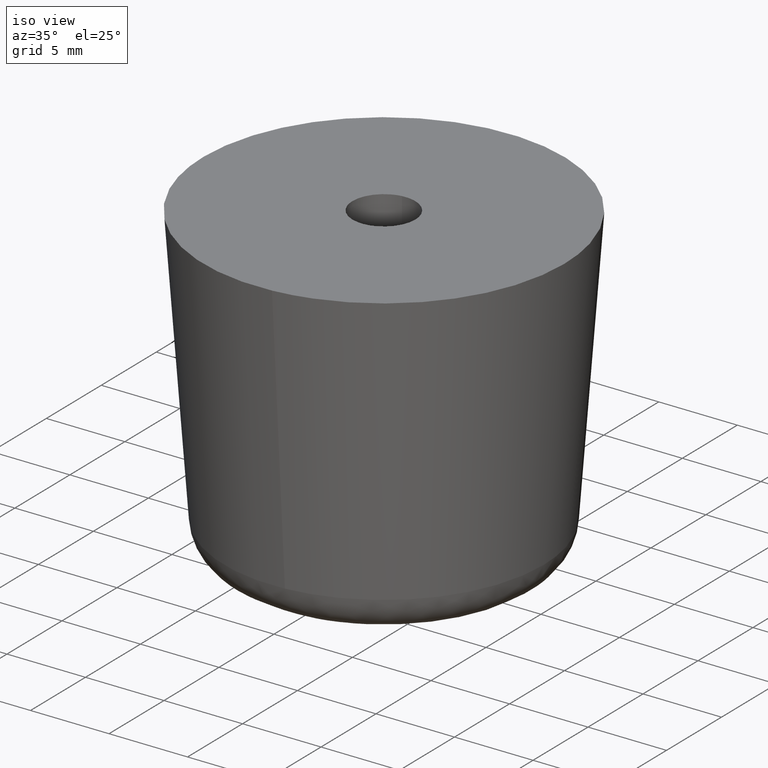
[diagram: clean part render]
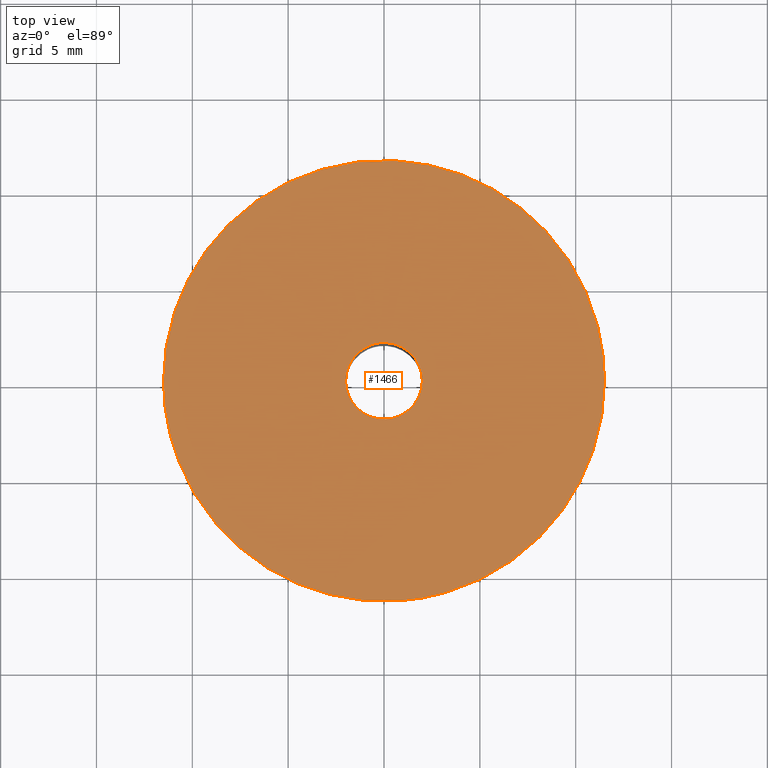
[diagram: tour spotlight — one face highlighted and labeled with its STEP entity id]
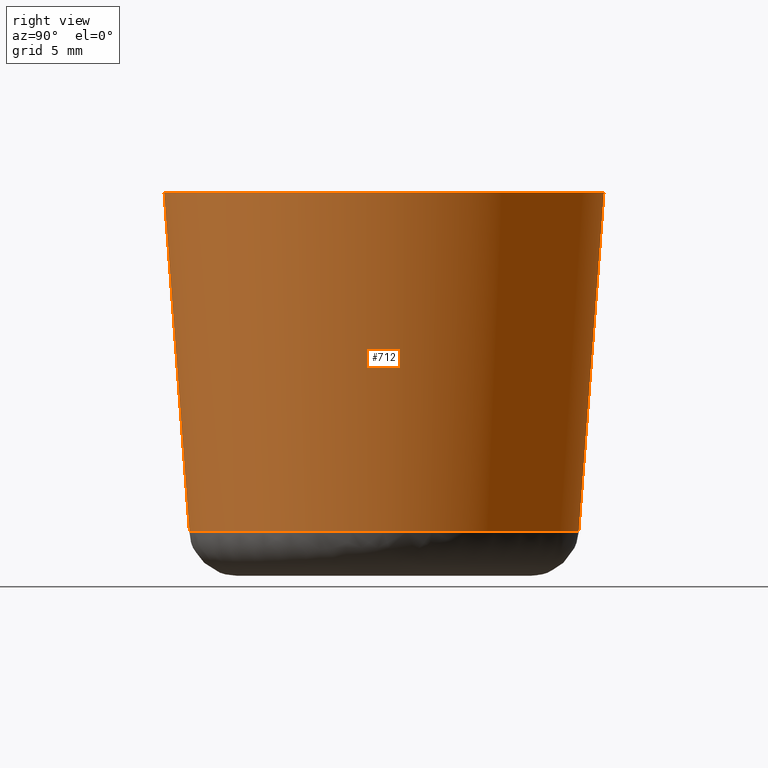
[diagram: tour spotlight — one face highlighted and labeled with its STEP entity id]
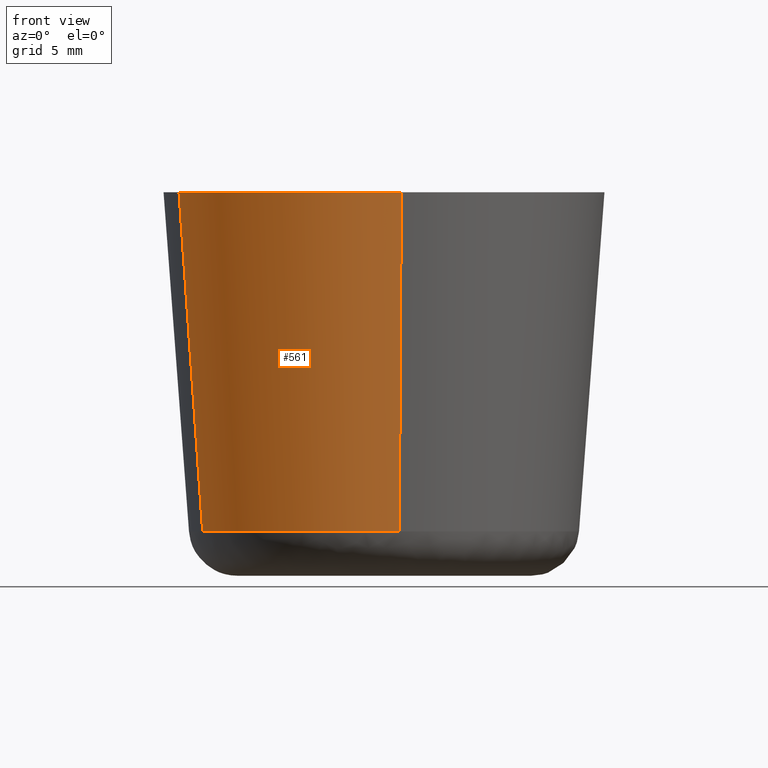
[diagram: tour spotlight — one face highlighted and labeled with its STEP entity id]
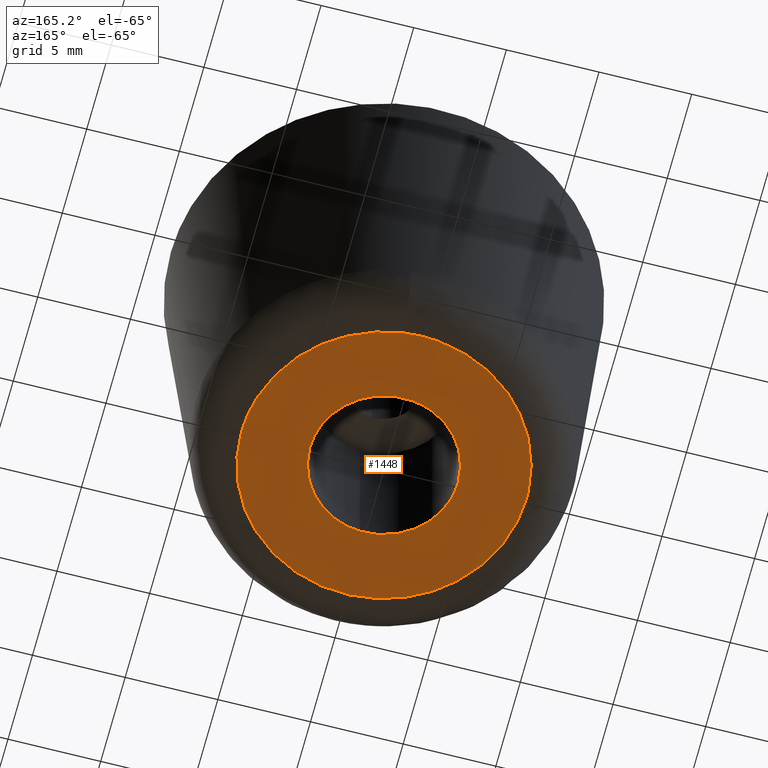
[diagram: tour spotlight — one face highlighted and labeled with its STEP entity id]
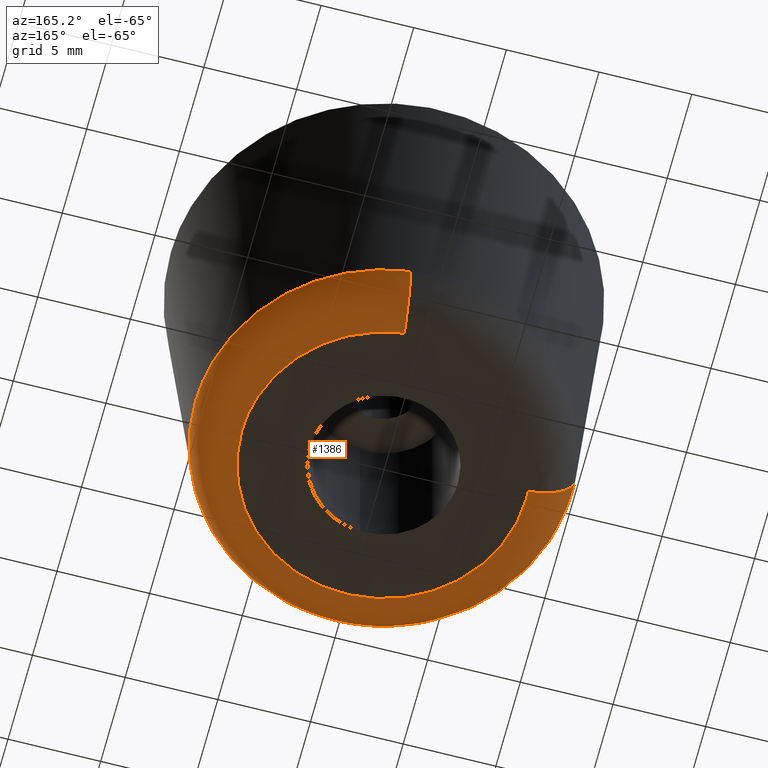
[diagram: tour spotlight — one face highlighted and labeled with its STEP entity id]
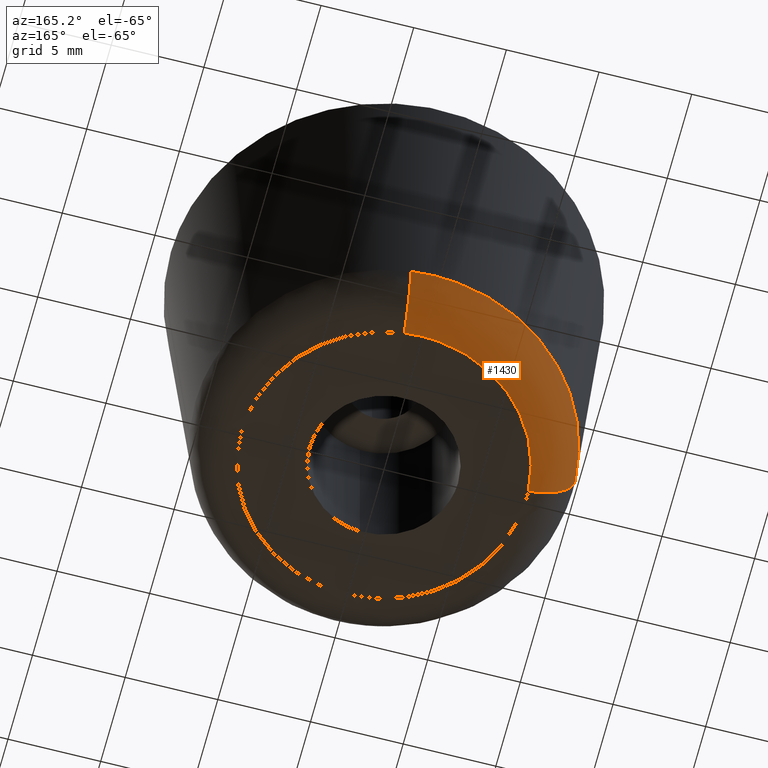
[diagram: tour spotlight — one face highlighted and labeled with its STEP entity id]
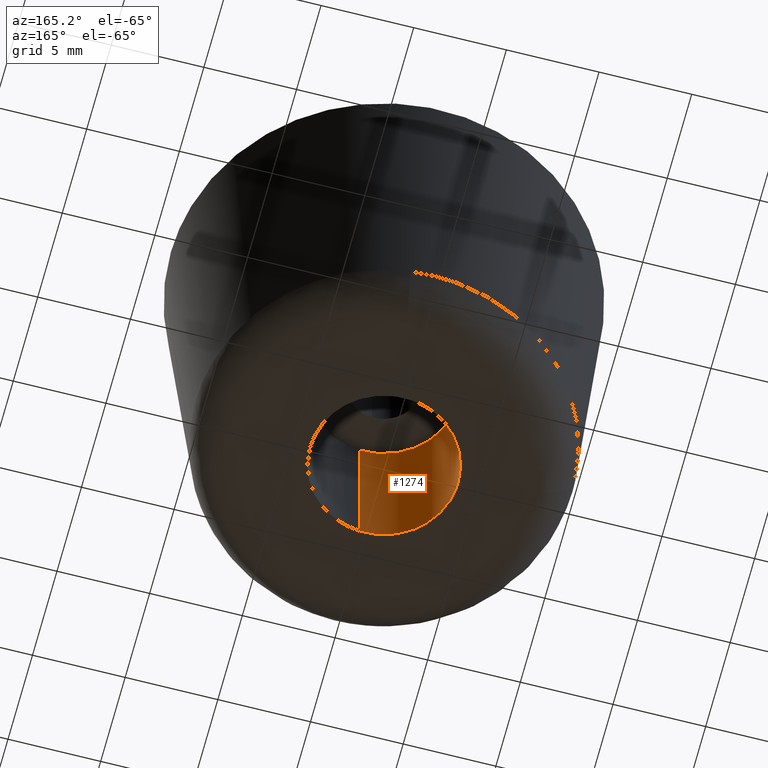
[diagram: tour spotlight — one face highlighted and labeled with its STEP entity id]
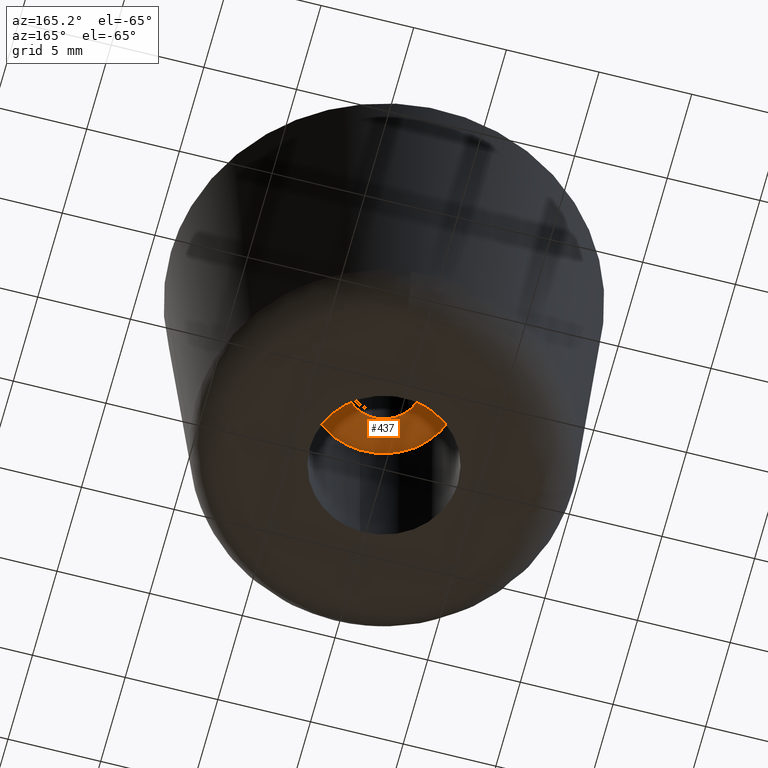
[diagram: tour spotlight — one face highlighted and labeled with its STEP entity id]
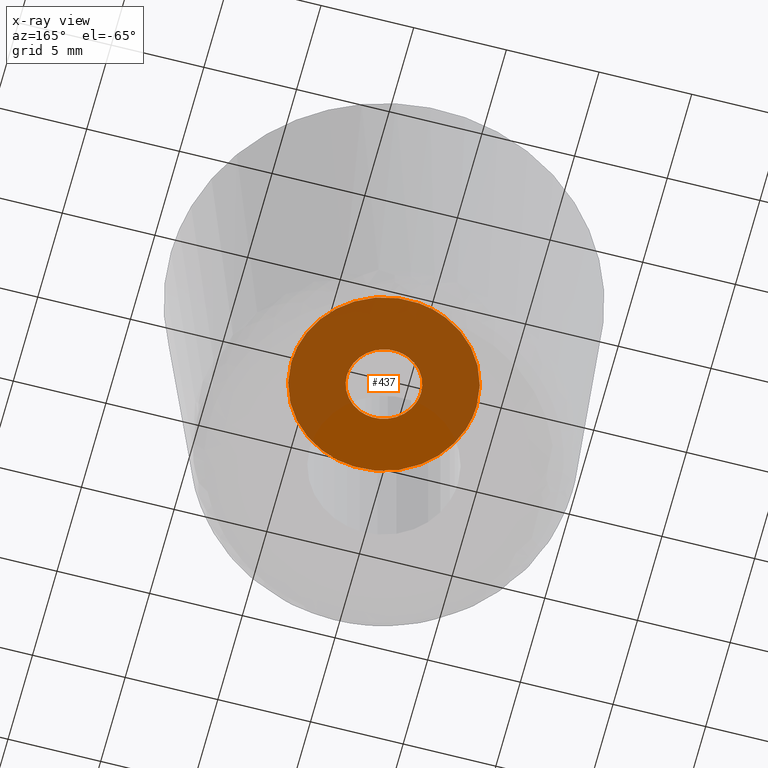
[diagram: x-ray of the same camera — body ghosted, this tour face saturated]
A machine part: a face-by-face anatomy tour. The part has 20 B-rep faces; the first image is the clean iso view, then the 8 largest visible faces are spotlighted one at a time (largest first), each with its STEP entity span.

Face 1 — top view, entity #1466. In plain terms, the highlighted face is a freeform B-spline surface patch.
Definition (entity closure, byte-faithful):
#530=CARTESIAN_POINT('',(0.902272999601038,-11.464549756822350,19.999998662323460));
#531=VERTEX_POINT('',#530);
#537=CARTESIAN_POINT('',(-10.693442220306119,-4.230873545412363,19.999998536992379));
#538=VERTEX_POINT('',#537);
#539=CARTESIAN_POINT('',(0.902272999601038,-11.464549756822350,19.999998662323460));
#540=CARTESIAN_POINT('',(0.451832913641353,-11.499999901567756,19.999998658990851));
#541=CARTESIAN_POINT('',(-1.866479E-009,-11.499999903240919,19.999998655475341));
#542=CARTESIAN_POINT('',(-7.817403479001211,-11.499999932189242,19.999998594651629));
#543=CARTESIAN_POINT('',(-10.693442220306116,-4.230873545412363,19.999998536992379));
#551=(BOUNDED_CURVE()B_SPLINE_CURVE(2,(#539,#540,#541,#542,#543),.UNSPECIFIED.,.F.,.U.)B_SPLINE_CURVE_WITH_KNOTS((3,2,3),(0.736331399221023,0.750000000000000,0.937532605542846),.UNSPECIFIED.)CURVE()GEOMETRIC_REPRESENTATION_ITEM()RATIONAL_B_SPLINE_CURVE((0.969723561918075,0.983986238084677,1.0,0.780291886120329,0.890203252678731))REPRESENTATION_ITEM(''));
#552=EDGE_CURVE('',#531,#538,#551,.T.);
#604=CARTESIAN_POINT('',(-11.500000000000000,0.0,20.0));
#605=VERTEX_POINT('',#604);
#606=CARTESIAN_POINT('',(-10.693442220306116,-4.230873545412363,19.999998536992379));
#607=CARTESIAN_POINT('',(-11.499999948984707,-2.192316319472119,19.999999268496186));
#608=CARTESIAN_POINT('',(-11.500000000000000,0.0,20.0));
#616=(BOUNDED_CURVE()B_SPLINE_CURVE(2,(#606,#607,#608),.UNSPECIFIED.,.F.,.U.)B_SPLINE_CURVE_WITH_KNOTS((3,3),(0.937532605542846,1.0),.UNSPECIFIED.)CURVE()GEOMETRIC_REPRESENTATION_ITEM()RATIONAL_B_SPLINE_CURVE((0.890203252678731,0.926814895066219,1.0))REPRESENTATION_ITEM(''));
#617=EDGE_CURVE('',#538,#605,#616,.T.);
#619=CARTESIAN_POINT('',(11.500000000000000,0.0,20.0));
#620=VERTEX_POINT('',#619);
#621=CARTESIAN_POINT('',(-11.500000000000000,0.0,20.0));
#622=CARTESIAN_POINT('',(-11.500000000000000,11.500000000000000,19.999999999999996));
#623=CARTESIAN_POINT('',(0.0,11.500000000000000,20.0));
#624=CARTESIAN_POINT('',(11.500000000000000,11.500000000000000,19.999999999999996));
#625=CARTESIAN_POINT('',(11.500000000000000,0.0,20.0));
#633=(BOUNDED_CURVE()B_SPLINE_CURVE(2,(#621,#622,#623,#624,#625),.UNSPECIFIED.,.F.,.U.)B_SPLINE_CURVE_WITH_KNOTS((3,2,3),(0.0,0.250000000000000,0.500000000000000),.UNSPECIFIED.)CURVE()GEOMETRIC_REPRESENTATION_ITEM()RATIONAL_B_SPLINE_CURVE((1.0,0.707106781186548,1.0,0.707106781186548,1.0))REPRESENTATION_ITEM(''));
#634=EDGE_CURVE('',#605,#620,#633,.T.);
#636=CARTESIAN_POINT('',(11.500000000000000,0.0,20.0));
#637=CARTESIAN_POINT('',(11.499999996064222,-10.630496736687158,19.999999331161728));
#638=CARTESIAN_POINT('',(0.902272999601038,-11.464549756822350,19.999998662323460));
#646=(BOUNDED_CURVE()B_SPLINE_CURVE(2,(#636,#637,#638),.UNSPECIFIED.,.F.,.U.)B_SPLINE_CURVE_WITH_KNOTS((3,3),(0.500000000000000,0.736331399221023),.UNSPECIFIED.)CURVE()GEOMETRIC_REPRESENTATION_ITEM()RATIONAL_B_SPLINE_CURVE((1.0,0.723120543101871,0.969723561918075))REPRESENTATION_ITEM(''));
#647=EDGE_CURVE('',#620,#531,#646,.T.);
#735=CARTESIAN_POINT('',(-0.236065886624471,1.986019359715669,20.000000000000011));
#736=VERTEX_POINT('',#735);
#737=CARTESIAN_POINT('',(2.0,0.0,20.0));
#738=VERTEX_POINT('',#737);
#739=CARTESIAN_POINT('',(-0.236065886624471,1.986019359715669,20.000000000000014));
#740=CARTESIAN_POINT('',(-0.118446934307620,2.000000000000000,19.999999999999996));
#741=CARTESIAN_POINT('',(0.0,2.0,20.0));
#742=CARTESIAN_POINT('',(2.000000000000000,2.000000000000000,19.999999999999996));
#743=CARTESIAN_POINT('',(2.0,0.0,20.0));
#751=(BOUNDED_CURVE()B_SPLINE_CURVE(2,(#739,#740,#741,#742,#743),.UNSPECIFIED.,.F.,.U.)B_SPLINE_CURVE_WITH_KNOTS((3,2,3),(0.229562693293432,0.250000000000000,0.500000000000000),.UNSPECIFIED.)CURVE()GEOMETRIC_REPRESENTATION_ITEM()RATIONAL_B_SPLINE_CURVE((0.956027184961797,0.976056205819342,1.0,0.707106781186548,1.0))REPRESENTATION_ITEM(''));
#752=EDGE_CURVE('',#736,#738,#751,.T.);
#793=CARTESIAN_POINT('',(0.122097079102479,-1.996269596841730,20.0));
#794=VERTEX_POINT('',#793);
#800=CARTESIAN_POINT('',(2.0,0.0,20.0));
#801=CARTESIAN_POINT('',(2.000000000000000,-1.881412133749522,20.000000000000007));
#802=CARTESIAN_POINT('',(0.122097079102479,-1.996269596841730,19.999999999999996));
#810=(BOUNDED_CURVE()B_SPLINE_CURVE(2,(#800,#801,#802),.UNSPECIFIED.,.F.,.U.)B_SPLINE_CURVE_WITH_KNOTS((3,3),(0.500000000000000,0.739332962236305),.UNSPECIFIED.)CURVE()GEOMETRIC_REPRESENTATION_ITEM()RATIONAL_B_SPLINE_CURVE((1.0,0.719603993289801,0.976072041661064))REPRESENTATION_ITEM(''));
#811=EDGE_CURVE('',#738,#794,#810,.T.);
#834=CARTESIAN_POINT('',(-2.0,0.0,20.0));
#835=VERTEX_POINT('',#834);
#836=CARTESIAN_POINT('',(-2.0,0.0,20.0));
#837=CARTESIAN_POINT('',(-2.000000000000000,1.776351378192379,20.0));
#838=CARTESIAN_POINT('',(-0.236065886624471,1.986019359715669,20.000000000000014));
#846=(BOUNDED_CURVE()B_SPLINE_CURVE(2,(#836,#837,#838),.UNSPECIFIED.,.F.,.U.)B_SPLINE_CURVE_WITH_KNOTS((3,3),(0.0,0.229562693293432),.UNSPECIFIED.)CURVE()GEOMETRIC_REPRESENTATION_ITEM()RATIONAL_B_SPLINE_CURVE((1.0,0.731050575367205,0.956027184961797))REPRESENTATION_ITEM(''));
#847=EDGE_CURVE('',#835,#736,#846,.T.);
#849=CARTESIAN_POINT('',(0.122097079102479,-1.996269596841730,20.0));
#850=CARTESIAN_POINT('',(0.061105526630035,-2.0,20.0));
#851=CARTESIAN_POINT('',(0.0,-2.0,20.0));
#852=CARTESIAN_POINT('',(-2.000000000000000,-2.000000000000000,19.999999999999996));
#853=CARTESIAN_POINT('',(-2.0,0.0,20.0));
#861=(BOUNDED_CURVE()B_SPLINE_CURVE(2,(#849,#850,#851,#852,#853),.UNSPECIFIED.,.F.,.U.)B_SPLINE_CURVE_WITH_KNOTS((3,2,3),(0.739332962236304,0.750000000000000,1.0),.UNSPECIFIED.)CURVE()GEOMETRIC_REPRESENTATION_ITEM()RATIONAL_B_SPLINE_CURVE((0.976072041661062,0.987502787896746,1.0,0.707106781186548,1.0))REPRESENTATION_ITEM(''));
#862=EDGE_CURVE('',#794,#835,#861,.T.);
#1449=CARTESIAN_POINT('',(12.648849955421539,-12.648610729862900,20.0));
#1450=CARTESIAN_POINT('',(-12.648850572329611,-12.648610729862900,20.0));
#1451=CARTESIAN_POINT('',(12.648849955421539,12.648839191486090,20.0));
#1452=CARTESIAN_POINT('',(-12.648850572329611,12.648839191486090,20.0));
#1453=B_SPLINE_SURFACE_WITH_KNOTS('',1,1,((#1449,#1451),(#1450,#1452)),.UNSPECIFIED.,.F.,.F.,.U.,(2,2),(2,2),(0.0,25.297700527751150),(0.0,25.297449921348989),.UNSPECIFIED.);
#1454=ORIENTED_EDGE('',*,*,#617,.F.);
#1455=ORIENTED_EDGE('',*,*,#552,.F.);
#1456=ORIENTED_EDGE('',*,*,#647,.F.);
#1457=ORIENTED_EDGE('',*,*,#634,.F.);
#1458=EDGE_LOOP('',(#1454,#1455,#1456,#1457));
#1459=FACE_OUTER_BOUND('',#1458,.T.);
#1460=ORIENTED_EDGE('',*,*,#811,.T.);
#1461=ORIENTED_EDGE('',*,*,#862,.T.);
#1462=ORIENTED_EDGE('',*,*,#847,.T.);
#1463=ORIENTED_EDGE('',*,*,#752,.T.);
#1464=EDGE_LOOP('',(#1460,#1461,#1462,#1463));
#1465=FACE_BOUND('',#1464,.T.);
#1466=ADVANCED_FACE('',(#1459,#1465),#1453,.F.);

Face 2 — right view, entity #712. In plain terms, the highlighted face is a freeform B-spline surface patch.
Definition (entity closure, byte-faithful):
#511=CARTESIAN_POINT('',(0.798193585195041,-10.142116088553699,2.313023351061828));
#512=VERTEX_POINT('',#511);
#513=CARTESIAN_POINT('',(-9.459956175316147,-3.742841224954973,2.313023037134865));
#514=VERTEX_POINT('',#513);
#530=CARTESIAN_POINT('',(0.902272999601038,-11.464549756822350,19.999998662323460));
#531=VERTEX_POINT('',#530);
#532=CARTESIAN_POINT('',(0.798193585195041,-10.142116088553699,2.313023351061828));
#533=CARTESIAN_POINT('',(0.902272999601038,-11.464549756822350,19.999998662323460));
#534=QUASI_UNIFORM_CURVE('',1,(#532,#533),.UNSPECIFIED.,.F.,.U.);
#535=EDGE_CURVE('',#512,#531,#534,.T.);
#537=CARTESIAN_POINT('',(-10.693442220306119,-4.230873545412363,19.999998536992379));
#538=VERTEX_POINT('',#537);
#554=CARTESIAN_POINT('',(-9.459956175316147,-3.742841224954973,2.313023037134865));
#555=CARTESIAN_POINT('',(-10.693442220306119,-4.230873545412363,19.999998536992379));
#556=QUASI_UNIFORM_CURVE('',1,(#554,#555),.UNSPECIFIED.,.F.,.U.);
#557=EDGE_CURVE('',#514,#538,#556,.T.);
#562=CARTESIAN_POINT('',(0.795599860892206,-10.109054720568411,1.870850614842025));
#563=CARTESIAN_POINT('',(10.904654581460614,-9.313454859676199,1.870850614842025));
#564=CARTESIAN_POINT('',(10.109054720568411,0.795599860892206,1.870850614842025));
#565=CARTESIAN_POINT('',(9.313454859676199,10.904654581460614,1.870850614842025));
#566=CARTESIAN_POINT('',(-0.795599860892206,10.109054720568411,1.870850614842025));
#567=CARTESIAN_POINT('',(-10.904654581460614,9.313454859676199,1.870850614842025));
#568=CARTESIAN_POINT('',(-10.109054720568411,-0.795599860892206,1.870850614842025));
#569=CARTESIAN_POINT('',(-9.989538830468684,-2.314193229725431,1.870850614842025));
#570=CARTESIAN_POINT('',(-9.429117123503739,-3.730645621517359,1.870850614842025));
#571=CARTESIAN_POINT('',(0.904946594369674,-11.498436703365030,20.453228734628951));
#572=CARTESIAN_POINT('',(12.403383297734706,-10.593490108995359,20.453228734628947));
#573=CARTESIAN_POINT('',(11.498436703365030,0.904946594369674,20.453228734628951));
#574=CARTESIAN_POINT('',(10.593490108995359,12.403383297734706,20.453228734628947));
#575=CARTESIAN_POINT('',(-0.904946594369674,11.498436703365030,20.453228734628951));
#576=CARTESIAN_POINT('',(-12.403383297734706,10.593490108995359,20.453228734628947));
#577=CARTESIAN_POINT('',(-11.498436703365030,-0.904946594369674,20.453228734628951));
#578=CARTESIAN_POINT('',(-11.362494626153618,-2.632254459678856,20.453228734628954));
#579=CARTESIAN_POINT('',(-10.725048920016819,-4.243383157717370,20.453228734628951));
#587=(BOUNDED_SURFACE()B_SPLINE_SURFACE(2,1,((#562,#571),(#563,#572),(#564,#573),(#565,#574),(#566,#575),(#567,#576),(#568,#577),(#569,#578),(#570,#579)),.UNSPECIFIED.,.F.,.F.,.U.)B_SPLINE_SURFACE_WITH_KNOTS((3,2,2,2,3),(2,2),(0.0,19.110143910477412,38.220287820954823,57.330431731432228,61.152460513527707),(0.0,18.634567759649759),.UNSPECIFIED.)GEOMETRIC_REPRESENTATION_ITEM()RATIONAL_B_SPLINE_SURFACE(((1.0,1.0),(0.707106781186548,0.707106781186548),(1.0,1.0),(0.707106781186548,0.707106781186548),(1.0,1.0),(0.707106781186548,0.707106781186548),(1.0,1.0),(0.941421356237310,0.941421356237310),(0.906274169979695,0.906274169979695)))REPRESENTATION_ITEM('')SURFACE());
#588=CARTESIAN_POINT('',(-10.173477000000000,0.0,2.313024999999895));
#589=VERTEX_POINT('',#588);
#590=CARTESIAN_POINT('',(-9.459956175316147,-3.742841224954974,2.313023037134865));
#591=CARTESIAN_POINT('',(-10.173476931554358,-1.939432015305154,2.313024018567380));
#592=CARTESIAN_POINT('',(-10.173477000000000,0.0,2.313024999999895));
#600=(BOUNDED_CURVE()B_SPLINE_CURVE(2,(#590,#591,#592),.UNSPECIFIED.,.F.,.U.)B_SPLINE_CURVE_WITH_KNOTS((3,3),(0.937532635059297,1.0),.UNSPECIFIED.)CURVE()GEOMETRIC_REPRESENTATION_ITEM()RATIONAL_B_SPLINE_CURVE((0.890203287277452,0.926814929646891,1.0))REPRESENTATION_ITEM(''));
#601=EDGE_CURVE('',#514,#589,#600,.T.);
#602=ORIENTED_EDGE('',*,*,#601,.F.);
#603=ORIENTED_EDGE('',*,*,#557,.T.);
#604=CARTESIAN_POINT('',(-11.500000000000000,0.0,20.0));
#605=VERTEX_POINT('',#604);
#606=CARTESIAN_POINT('',(-10.693442220306116,-4.230873545412363,19.999998536992379));
#607=CARTESIAN_POINT('',(-11.499999948984707,-2.192316319472119,19.999999268496186));
#608=CARTESIAN_POINT('',(-11.500000000000000,0.0,20.0));
#616=(BOUNDED_CURVE()B_SPLINE_CURVE(2,(#606,#607,#608),.UNSPECIFIED.,.F.,.U.)B_SPLINE_CURVE_WITH_KNOTS((3,3),(0.937532605542846,1.0),.UNSPECIFIED.)CURVE()GEOMETRIC_REPRESENTATION_ITEM()RATIONAL_B_SPLINE_CURVE((0.890203252678731,0.926814895066219,1.0))REPRESENTATION_ITEM(''));
#617=EDGE_CURVE('',#538,#605,#616,.T.);
#618=ORIENTED_EDGE('',*,*,#617,.T.);
#619=CARTESIAN_POINT('',(11.500000000000000,0.0,20.0));
#620=VERTEX_POINT('',#619);
#621=CARTESIAN_POINT('',(-11.500000000000000,0.0,20.0));
#622=CARTESIAN_POINT('',(-11.500000000000000,11.500000000000000,19.999999999999996));
#623=CARTESIAN_POINT('',(0.0,11.500000000000000,20.0));
#624=CARTESIAN_POINT('',(11.500000000000000,11.500000000000000,19.999999999999996));
#625=CARTESIAN_POINT('',(11.500000000000000,0.0,20.0));
#633=(BOUNDED_CURVE()B_SPLINE_CURVE(2,(#621,#622,#623,#624,#625),.UNSPECIFIED.,.F.,.U.)B_SPLINE_CURVE_WITH_KNOTS((3,2,3),(0.0,0.250000000000000,0.500000000000000),.UNSPECIFIED.)CURVE()GEOMETRIC_REPRESENTATION_ITEM()RATIONAL_B_SPLINE_CURVE((1.0,0.707106781186548,1.0,0.707106781186548,1.0))REPRESENTATION_ITEM(''));
#634=EDGE_CURVE('',#605,#620,#633,.T.);
#635=ORIENTED_EDGE('',*,*,#634,.T.);
#636=CARTESIAN_POINT('',(11.500000000000000,0.0,20.0));
#637=CARTESIAN_POINT('',(11.499999996064222,-10.630496736687158,19.999999331161728));
#638=CARTESIAN_POINT('',(0.902272999601038,-11.464549756822350,19.999998662323460));
#646=(BOUNDED_CURVE()B_SPLINE_CURVE(2,(#636,#637,#638),.UNSPECIFIED.,.F.,.U.)B_SPLINE_CURVE_WITH_KNOTS((3,3),(0.500000000000000,0.736331399221023),.UNSPECIFIED.)CURVE()GEOMETRIC_REPRESENTATION_ITEM()RATIONAL_B_SPLINE_CURVE((1.0,0.723120543101871,0.969723561918075))REPRESENTATION_ITEM(''));
#647=EDGE_CURVE('',#620,#531,#646,.T.);
#648=ORIENTED_EDGE('',*,*,#647,.T.);
#649=ORIENTED_EDGE('',*,*,#535,.F.);
#650=CARTESIAN_POINT('',(10.173477000000000,0.0,2.313024999999895));
#651=VERTEX_POINT('',#650);
#652=CARTESIAN_POINT('',(10.173477000000000,0.0,2.313024999999895));
#653=CARTESIAN_POINT('',(10.173476995148388,-9.404272981378053,2.313024175530861));
#654=CARTESIAN_POINT('',(0.798193585195041,-10.142116088553697,2.313023351061828));
#662=(BOUNDED_CURVE()B_SPLINE_CURVE(2,(#652,#653,#654),.UNSPECIFIED.,.F.,.U.)B_SPLINE_CURVE_WITH_KNOTS((3,3),(0.500000000000000,0.736331439415904),.UNSPECIFIED.)CURVE()GEOMETRIC_REPRESENTATION_ITEM()RATIONAL_B_SPLINE_CURVE((1.0,0.723120496010638,0.969723645801815))REPRESENTATION_ITEM(''));
#663=EDGE_CURVE('',#651,#512,#662,.T.);
#664=ORIENTED_EDGE('',*,*,#663,.F.);
#665=CARTESIAN_POINT('',(1.218448693056075,10.100248498573420,2.313024990089781));
#666=VERTEX_POINT('',#665);
#667=CARTESIAN_POINT('',(1.218448693056074,10.100248498573416,2.313024990089781));
#668=CARTESIAN_POINT('',(10.173477000000000,9.019953901967734,2.313024999999895));
#669=CARTESIAN_POINT('',(10.173477000000000,0.0,2.313024999999895));
#677=(BOUNDED_CURVE()B_SPLINE_CURVE(2,(#667,#668,#669),.UNSPECIFIED.,.F.,.U.)B_SPLINE_CURVE_WITH_KNOTS((3,3),(0.270732403713715,0.500000000000000),.UNSPECIFIED.)CURVE()GEOMETRIC_REPRESENTATION_ITEM()RATIONAL_B_SPLINE_CURVE((0.955449597721109,0.731396303016347,1.0))REPRESENTATION_ITEM(''));
#678=EDGE_CURVE('',#666,#651,#677,.T.);
#679=ORIENTED_EDGE('',*,*,#678,.F.);
#680=CARTESIAN_POINT('',(-10.153402098555540,0.638797914530179,2.313024990099993));
#681=VERTEX_POINT('',#680);
#682=CARTESIAN_POINT('',(-10.153402098555542,0.638797914530179,2.313024990099992));
#683=CARTESIAN_POINT('',(-9.553530804483387,10.173476999999998,2.313024999999896));
#684=CARTESIAN_POINT('',(0.0,10.173477000000000,2.313024999999895));
#685=CARTESIAN_POINT('',(0.611424855031880,10.173477000000000,2.313024999999894));
#686=CARTESIAN_POINT('',(1.218448693056074,10.100248498573416,2.313024990089781));
#694=(BOUNDED_CURVE()B_SPLINE_CURVE(2,(#682,#683,#684,#685,#686),.UNSPECIFIED.,.F.,.U.)B_SPLINE_CURVE_WITH_KNOTS((3,2,3),(0.010968089259873,0.250000000000000,0.270732403713715),.UNSPECIFIED.)CURVE()GEOMETRIC_REPRESENTATION_ITEM()RATIONAL_B_SPLINE_CURVE((0.975427680453513,0.719956697056777,1.0,0.975710478170201,0.955449597721109))REPRESENTATION_ITEM(''));
#695=EDGE_CURVE('',#681,#666,#694,.T.);
#696=ORIENTED_EDGE('',*,*,#695,.F.);
#697=CARTESIAN_POINT('',(-10.173477000000000,0.0,2.313024999999895));
#698=CARTESIAN_POINT('',(-10.173476999999997,0.319714394794955,2.313024999999895));
#699=CARTESIAN_POINT('',(-10.153402098555542,0.638797914530179,2.313024990099992));
#707=(BOUNDED_CURVE()B_SPLINE_CURVE(2,(#697,#698,#699),.UNSPECIFIED.,.F.,.U.)B_SPLINE_CURVE_WITH_KNOTS((3,3),(0.0,0.010968089259873),.UNSPECIFIED.)CURVE()GEOMETRIC_REPRESENTATION_ITEM()RATIONAL_B_SPLINE_CURVE((1.0,0.987150084129770,0.975427680453513))REPRESENTATION_ITEM(''));
#708=EDGE_CURVE('',#589,#681,#707,.T.);
#709=ORIENTED_EDGE('',*,*,#708,.F.);
#710=EDGE_LOOP('',(#602,#603,#618,#635,#648,#649,#664,#679,#696,#709));
#711=FACE_OUTER_BOUND('',#710,.T.);
#712=ADVANCED_FACE('',(#711),#587,.T.);

Face 3 — front view, entity #561. In plain terms, the highlighted face is a freeform B-spline surface patch.
Definition (entity closure, byte-faithful):
#497=CARTESIAN_POINT('',(-9.429117123503739,-3.730645621517359,1.870850614842025));
#498=CARTESIAN_POINT('',(-6.672930594443229,-10.696840814874953,1.870850614842026));
#499=CARTESIAN_POINT('',(0.795599860892206,-10.109054720568411,1.870850614842025));
#500=CARTESIAN_POINT('',(-10.725048920016819,-4.243383157717370,20.453228734628951));
#501=CARTESIAN_POINT('',(-7.590053886051103,-12.167007740650106,20.453228734628954));
#502=CARTESIAN_POINT('',(0.904946594369674,-11.498436703365030,20.453228734628951));
#510=(BOUNDED_SURFACE()B_SPLINE_SURFACE(2,1,((#497,#500),(#498,#501),(#499,#502)),.UNSPECIFIED.,.F.,.F.,.U.)B_SPLINE_SURFACE_WITH_KNOTS((3,3),(2,2),(0.0,15.183909249679511),(0.0,18.634567759649759),.UNSPECIFIED.)GEOMETRIC_REPRESENTATION_ITEM()RATIONAL_B_SPLINE_SURFACE(((0.906274169979695,0.906274169979695),(0.765685424949238,0.765685424949238),(1.0,1.0)))REPRESENTATION_ITEM('')SURFACE());
#511=CARTESIAN_POINT('',(0.798193585195041,-10.142116088553699,2.313023351061828));
#512=VERTEX_POINT('',#511);
#513=CARTESIAN_POINT('',(-9.459956175316147,-3.742841224954973,2.313023037134865));
#514=VERTEX_POINT('',#513);
#515=CARTESIAN_POINT('',(0.798193585195041,-10.142116088553697,2.313023351061828));
#516=CARTESIAN_POINT('',(0.399712869647991,-10.173476878545779,2.313023342714395));
#517=CARTESIAN_POINT('',(-1.693291E-009,-10.173476880484889,2.313023333908840));
#518=CARTESIAN_POINT('',(-6.915668718298093,-10.173476914034600,2.313023181558714));
#519=CARTESIAN_POINT('',(-9.459956175316147,-3.742841224954974,2.313023037134865));
#527=(BOUNDED_CURVE()B_SPLINE_CURVE(2,(#515,#516,#517,#518,#519),.UNSPECIFIED.,.F.,.U.)B_SPLINE_CURVE_WITH_KNOTS((3,2,3),(0.736331439415904,0.750000000000000,0.937532635059297),.UNSPECIFIED.)CURVE()GEOMETRIC_REPRESENTATION_ITEM()RATIONAL_B_SPLINE_CURVE((0.969723645801815,0.983986285175910,1.0,0.780291851539656,0.890203287277452))REPRESENTATION_ITEM(''));
#528=EDGE_CURVE('',#512,#514,#527,.T.);
#529=ORIENTED_EDGE('',*,*,#528,.F.);
#530=CARTESIAN_POINT('',(0.902272999601038,-11.464549756822350,19.999998662323460));
#531=VERTEX_POINT('',#530);
#532=CARTESIAN_POINT('',(0.798193585195041,-10.142116088553699,2.313023351061828));
#533=CARTESIAN_POINT('',(0.902272999601038,-11.464549756822350,19.999998662323460));
#534=QUASI_UNIFORM_CURVE('',1,(#532,#533),.UNSPECIFIED.,.F.,.U.);
#535=EDGE_CURVE('',#512,#531,#534,.T.);
#536=ORIENTED_EDGE('',*,*,#535,.T.);
#537=CARTESIAN_POINT('',(-10.693442220306119,-4.230873545412363,19.999998536992379));
#538=VERTEX_POINT('',#537);
#539=CARTESIAN_POINT('',(0.902272999601038,-11.464549756822350,19.999998662323460));
#540=CARTESIAN_POINT('',(0.451832913641353,-11.499999901567756,19.999998658990851));
#541=CARTESIAN_POINT('',(-1.866479E-009,-11.499999903240919,19.999998655475341));
#542=CARTESIAN_POINT('',(-7.817403479001211,-11.499999932189242,19.999998594651629));
#543=CARTESIAN_POINT('',(-10.693442220306116,-4.230873545412363,19.999998536992379));
#551=(BOUNDED_CURVE()B_SPLINE_CURVE(2,(#539,#540,#541,#542,#543),.UNSPECIFIED.,.F.,.U.)B_SPLINE_CURVE_WITH_KNOTS((3,2,3),(0.736331399221023,0.750000000000000,0.937532605542846),.UNSPECIFIED.)CURVE()GEOMETRIC_REPRESENTATION_ITEM()RATIONAL_B_SPLINE_CURVE((0.969723561918075,0.983986238084677,1.0,0.780291886120329,0.890203252678731))REPRESENTATION_ITEM(''));
#552=EDGE_CURVE('',#531,#538,#551,.T.);
#553=ORIENTED_EDGE('',*,*,#552,.T.);
#554=CARTESIAN_POINT('',(-9.459956175316147,-3.742841224954973,2.313023037134865));
#555=CARTESIAN_POINT('',(-10.693442220306119,-4.230873545412363,19.999998536992379));
#556=QUASI_UNIFORM_CURVE('',1,(#554,#555),.UNSPECIFIED.,.F.,.U.);
#557=EDGE_CURVE('',#514,#538,#556,.T.);
#558=ORIENTED_EDGE('',*,*,#557,.F.);
#559=EDGE_LOOP('',(#529,#536,#553,#558));
#560=FACE_OUTER_BOUND('',#559,.T.);
#561=ADVANCED_FACE('',(#560),#510,.T.);

Face 4 — auxiliary view, entity #1448. In plain terms, the highlighted face is a freeform B-spline surface patch.
Definition (entity closure, byte-faithful):
#1111=CARTESIAN_POINT('',(-0.472136938642817,3.972038105452789,1.277743E-016));
#1112=VERTEX_POINT('',#1111);
#1113=CARTESIAN_POINT('',(4.0,0.0,0.0));
#1114=VERTEX_POINT('',#1113);
#1115=CARTESIAN_POINT('',(-0.472136938642817,3.972038105452789,1.277743E-016));
#1116=CARTESIAN_POINT('',(-0.236896478623590,4.0,0.0));
#1117=CARTESIAN_POINT('',(0.0,4.0,0.0));
#1118=CARTESIAN_POINT('',(4.000000000000000,4.000000000000000,0.0));
#1119=CARTESIAN_POINT('',(4.0,0.0,0.0));
#1127=(BOUNDED_CURVE()B_SPLINE_CURVE(2,(#1115,#1116,#1117,#1118,#1119),.UNSPECIFIED.,.F.,.U.)B_SPLINE_CURVE_WITH_KNOTS((3,2,3),(0.229562473514301,0.250000000000000,0.500000000000000),.UNSPECIFIED.)CURVE()GEOMETRIC_REPRESENTATION_ITEM()RATIONAL_B_SPLINE_CURVE((0.956026754185253,0.976055948332074,1.0,0.707106781186548,1.0))REPRESENTATION_ITEM(''));
#1128=EDGE_CURVE('',#1112,#1114,#1127,.T.);
#1130=CARTESIAN_POINT('',(0.244194158158791,-3.992539193686283,1.110223E-016));
#1131=VERTEX_POINT('',#1130);
#1132=CARTESIAN_POINT('',(4.0,0.0,0.0));
#1133=CARTESIAN_POINT('',(4.0,-3.762824267586224,0.0));
#1134=CARTESIAN_POINT('',(0.244194158158791,-3.992539193686283,1.110223E-016));
#1142=(BOUNDED_CURVE()B_SPLINE_CURVE(2,(#1132,#1133,#1134),.UNSPECIFIED.,.F.,.U.)B_SPLINE_CURVE_WITH_KNOTS((3,3),(0.500000000000000,0.739332962240295),.UNSPECIFIED.)CURVE()GEOMETRIC_REPRESENTATION_ITEM()RATIONAL_B_SPLINE_CURVE((1.0,0.719603993285126,0.976072041669616))REPRESENTATION_ITEM(''));
#1143=EDGE_CURVE('',#1114,#1131,#1142,.T.);
#1210=CARTESIAN_POINT('',(-4.0,0.0,0.0));
#1211=VERTEX_POINT('',#1210);
#1212=CARTESIAN_POINT('',(-4.0,0.0,0.0));
#1213=CARTESIAN_POINT('',(-4.000000000000000,3.552698103777036,0.0));
#1214=CARTESIAN_POINT('',(-0.472136938642817,3.972038105452789,1.277743E-016));
#1222=(BOUNDED_CURVE()B_SPLINE_CURVE(2,(#1212,#1213,#1214),.UNSPECIFIED.,.F.,.U.)B_SPLINE_CURVE_WITH_KNOTS((3,3),(0.0,0.229562473514301),.UNSPECIFIED.)CURVE()GEOMETRIC_REPRESENTATION_ITEM()RATIONAL_B_SPLINE_CURVE((1.0,0.731050832854474,0.956026754185253))REPRESENTATION_ITEM(''));
#1223=EDGE_CURVE('',#1211,#1112,#1222,.T.);
#1257=CARTESIAN_POINT('',(0.244194158158791,-3.992539193686283,1.110223E-016));
#1258=CARTESIAN_POINT('',(0.122211053213773,-4.000000000000000,0.0));
#1259=CARTESIAN_POINT('',(0.0,-4.0,0.0));
#1260=CARTESIAN_POINT('',(-4.000000000000000,-4.000000000000000,0.0));
#1261=CARTESIAN_POINT('',(-4.0,0.0,0.0));
#1269=(BOUNDED_CURVE()B_SPLINE_CURVE(2,(#1257,#1258,#1259,#1260,#1261),.UNSPECIFIED.,.F.,.U.)B_SPLINE_CURVE_WITH_KNOTS((3,2,3),(0.739332962240295,0.750000000000000,1.0),.UNSPECIFIED.)CURVE()GEOMETRIC_REPRESENTATION_ITEM()RATIONAL_B_SPLINE_CURVE((0.976072041669615,0.987502787901421,1.0,0.707106781186548,1.0))REPRESENTATION_ITEM(''));
#1270=EDGE_CURVE('',#1131,#1211,#1269,.T.);
#1304=CARTESIAN_POINT('',(0.919869330717334,7.625194954073032,-9.869419E-014));
#1305=VERTEX_POINT('',#1304);
#1306=CARTESIAN_POINT('',(7.680478999999999,0.0,0.0));
#1307=VERTEX_POINT('',#1306);
#1308=CARTESIAN_POINT('',(0.919869330717334,7.625194954073032,-9.869419E-014));
#1309=CARTESIAN_POINT('',(7.680479000000000,6.809625315353274,-8.819687E-014));
#1310=CARTESIAN_POINT('',(7.680478999999999,0.0,0.0));
#1318=(BOUNDED_CURVE()B_SPLINE_CURVE(2,(#1308,#1309,#1310),.UNSPECIFIED.,.F.,.U.)B_SPLINE_CURVE_WITH_KNOTS((3,3),(0.270732403715329,0.500000000000000),.UNSPECIFIED.)CURVE()GEOMETRIC_REPRESENTATION_ITEM()RATIONAL_B_SPLINE_CURVE((0.955449597717954,0.731396303018238,1.0))REPRESENTATION_ITEM(''));
#1319=EDGE_CURVE('',#1305,#1307,#1318,.T.);
#1339=CARTESIAN_POINT('',(-7.665323329333303,0.482261266689054,-9.906979E-014));
#1340=VERTEX_POINT('',#1339);
#1354=CARTESIAN_POINT('',(-7.680478999999999,0.0,-9.947598E-014));
#1355=VERTEX_POINT('',#1354);
#1356=CARTESIAN_POINT('',(-7.680478999999999,0.0,-9.947598E-014));
#1357=CARTESIAN_POINT('',(-7.680478999999999,0.241368776426751,-9.947598E-014));
#1358=CARTESIAN_POINT('',(-7.665323329333304,0.482261266689054,-9.906979E-014));
#1366=(BOUNDED_CURVE()B_SPLINE_CURVE(2,(#1356,#1357,#1358),.UNSPECIFIED.,.F.,.U.)B_SPLINE_CURVE_WITH_KNOTS((3,3),(0.0,0.010968089261087),.UNSPECIFIED.)CURVE()GEOMETRIC_REPRESENTATION_ITEM()RATIONAL_B_SPLINE_CURVE((1.0,0.987150084128348,0.975427680450918))REPRESENTATION_ITEM(''));
#1367=EDGE_CURVE('',#1355,#1340,#1366,.T.);
#1369=CARTESIAN_POINT('',(7.680478999999999,0.0,0.0));
#1370=CARTESIAN_POINT('',(7.680478999999999,-7.680478999999999,-9.947598E-014));
#1371=CARTESIAN_POINT('',(0.0,-7.680478999999999,-9.947598E-014));
#1372=CARTESIAN_POINT('',(-7.680478999999999,-7.680478999999999,-9.947598E-014));
#1373=CARTESIAN_POINT('',(-7.680478999999999,0.0,-9.947598E-014));
#1381=(BOUNDED_CURVE()B_SPLINE_CURVE(2,(#1369,#1370,#1371,#1372,#1373),.UNSPECIFIED.,.F.,.U.)B_SPLINE_CURVE_WITH_KNOTS((3,2,3),(0.500000000000000,0.750000000000000,1.0),.UNSPECIFIED.)CURVE()GEOMETRIC_REPRESENTATION_ITEM()RATIONAL_B_SPLINE_CURVE((1.0,0.707106781186548,1.0,0.707106781186548,1.0))REPRESENTATION_ITEM(''));
#1382=EDGE_CURVE('',#1307,#1355,#1381,.T.);
#1410=CARTESIAN_POINT('',(-7.665323329333304,0.482261266689054,-9.906979E-014));
#1411=CARTESIAN_POINT('',(-7.212449855557756,7.680479000000000,-9.947598E-014));
#1412=CARTESIAN_POINT('',(0.0,7.680478999999999,-9.947598E-014));
#1413=CARTESIAN_POINT('',(0.461595947926668,7.680478999999998,-9.947598E-014));
#1414=CARTESIAN_POINT('',(0.919869330717334,7.625194954073032,-9.869419E-014));
#1422=(BOUNDED_CURVE()B_SPLINE_CURVE(2,(#1410,#1411,#1412,#1413,#1414),.UNSPECIFIED.,.F.,.U.)B_SPLINE_CURVE_WITH_KNOTS((3,2,3),(0.010968089261087,0.250000000000000,0.270732403715329),.UNSPECIFIED.)CURVE()GEOMETRIC_REPRESENTATION_ITEM()RATIONAL_B_SPLINE_CURVE((0.975427680450918,0.719956697058200,1.0,0.975710478168309,0.955449597717954))REPRESENTATION_ITEM(''));
#1423=EDGE_CURVE('',#1340,#1305,#1422,.T.);
#1431=CARTESIAN_POINT('',(-8.447758966525166,-8.447733467295077,-4.973799E-014));
#1432=CARTESIAN_POINT('',(8.447759241200499,-8.447733467295077,-4.973799E-014));
#1433=CARTESIAN_POINT('',(-8.447758966525166,8.447223247626610,-4.973799E-014));
#1434=CARTESIAN_POINT('',(8.447759241200499,8.447223247626610,-4.973799E-014));
#1435=B_SPLINE_SURFACE_WITH_KNOTS('',1,1,((#1431,#1433),(#1432,#1434)),.UNSPECIFIED.,.F.,.F.,.U.,(2,2),(2,2),(0.0,16.895518207725669),(0.0,16.894956714921690),.UNSPECIFIED.);
#1436=ORIENTED_EDGE('',*,*,#1367,.T.);
#1437=ORIENTED_EDGE('',*,*,#1423,.T.);
#1438=ORIENTED_EDGE('',*,*,#1319,.T.);
#1439=ORIENTED_EDGE('',*,*,#1382,.T.);
#1440=EDGE_LOOP('',(#1436,#1437,#1438,#1439));
#1441=FACE_OUTER_BOUND('',#1440,.T.);
#1442=ORIENTED_EDGE('',*,*,#1143,.F.);
#1443=ORIENTED_EDGE('',*,*,#1128,.F.);
#1444=ORIENTED_EDGE('',*,*,#1223,.F.);
#1445=ORIENTED_EDGE('',*,*,#1270,.F.);
#1446=EDGE_LOOP('',(#1442,#1443,#1444,#1445));
#1447=FACE_BOUND('',#1446,.T.);
#1448=ADVANCED_FACE('',(#1441,#1447),#1435,.F.);

Face 5 — auxiliary view, entity #1386. In plain terms, the highlighted face is a freeform B-spline surface patch.
Definition (entity closure, byte-faithful):
#511=CARTESIAN_POINT('',(0.798193585195041,-10.142116088553699,2.313023351061828));
#512=VERTEX_POINT('',#511);
#513=CARTESIAN_POINT('',(-9.459956175316147,-3.742841224954973,2.313023037134865));
#514=VERTEX_POINT('',#513);
#515=CARTESIAN_POINT('',(0.798193585195041,-10.142116088553697,2.313023351061828));
#516=CARTESIAN_POINT('',(0.399712869647991,-10.173476878545779,2.313023342714395));
#517=CARTESIAN_POINT('',(-1.693291E-009,-10.173476880484889,2.313023333908840));
#518=CARTESIAN_POINT('',(-6.915668718298093,-10.173476914034600,2.313023181558714));
#519=CARTESIAN_POINT('',(-9.459956175316147,-3.742841224954974,2.313023037134865));
#527=(BOUNDED_CURVE()B_SPLINE_CURVE(2,(#515,#516,#517,#518,#519),.UNSPECIFIED.,.F.,.U.)B_SPLINE_CURVE_WITH_KNOTS((3,2,3),(0.736331439415904,0.750000000000000,0.937532635059297),.UNSPECIFIED.)CURVE()GEOMETRIC_REPRESENTATION_ITEM()RATIONAL_B_SPLINE_CURVE((0.969723645801815,0.983986285175910,1.0,0.780291851539656,0.890203287277452))REPRESENTATION_ITEM(''));
#528=EDGE_CURVE('',#512,#514,#527,.T.);
#588=CARTESIAN_POINT('',(-10.173477000000000,0.0,2.313024999999895));
#589=VERTEX_POINT('',#588);
#590=CARTESIAN_POINT('',(-9.459956175316147,-3.742841224954974,2.313023037134865));
#591=CARTESIAN_POINT('',(-10.173476931554358,-1.939432015305154,2.313024018567380));
#592=CARTESIAN_POINT('',(-10.173477000000000,0.0,2.313024999999895));
#600=(BOUNDED_CURVE()B_SPLINE_CURVE(2,(#590,#591,#592),.UNSPECIFIED.,.F.,.U.)B_SPLINE_CURVE_WITH_KNOTS((3,3),(0.937532635059297,1.0),.UNSPECIFIED.)CURVE()GEOMETRIC_REPRESENTATION_ITEM()RATIONAL_B_SPLINE_CURVE((0.890203287277452,0.926814929646891,1.0))REPRESENTATION_ITEM(''));
#601=EDGE_CURVE('',#514,#589,#600,.T.);
#650=CARTESIAN_POINT('',(10.173477000000000,0.0,2.313024999999895));
#651=VERTEX_POINT('',#650);
#652=CARTESIAN_POINT('',(10.173477000000000,0.0,2.313024999999895));
#653=CARTESIAN_POINT('',(10.173476995148388,-9.404272981378053,2.313024175530861));
#654=CARTESIAN_POINT('',(0.798193585195041,-10.142116088553697,2.313023351061828));
#662=(BOUNDED_CURVE()B_SPLINE_CURVE(2,(#652,#653,#654),.UNSPECIFIED.,.F.,.U.)B_SPLINE_CURVE_WITH_KNOTS((3,3),(0.500000000000000,0.736331439415904),.UNSPECIFIED.)CURVE()GEOMETRIC_REPRESENTATION_ITEM()RATIONAL_B_SPLINE_CURVE((1.0,0.723120496010638,0.969723645801815))REPRESENTATION_ITEM(''));
#663=EDGE_CURVE('',#651,#512,#662,.T.);
#665=CARTESIAN_POINT('',(1.218448693056075,10.100248498573420,2.313024990089781));
#666=VERTEX_POINT('',#665);
#667=CARTESIAN_POINT('',(1.218448693056074,10.100248498573416,2.313024990089781));
#668=CARTESIAN_POINT('',(10.173477000000000,9.019953901967734,2.313024999999895));
#669=CARTESIAN_POINT('',(10.173477000000000,0.0,2.313024999999895));
#677=(BOUNDED_CURVE()B_SPLINE_CURVE(2,(#667,#668,#669),.UNSPECIFIED.,.F.,.U.)B_SPLINE_CURVE_WITH_KNOTS((3,3),(0.270732403713715,0.500000000000000),.UNSPECIFIED.)CURVE()GEOMETRIC_REPRESENTATION_ITEM()RATIONAL_B_SPLINE_CURVE((0.955449597721109,0.731396303016347,1.0))REPRESENTATION_ITEM(''));
#678=EDGE_CURVE('',#666,#651,#677,.T.);
#680=CARTESIAN_POINT('',(-10.153402098555540,0.638797914530179,2.313024990099993));
#681=VERTEX_POINT('',#680);
#697=CARTESIAN_POINT('',(-10.173477000000000,0.0,2.313024999999895));
#698=CARTESIAN_POINT('',(-10.173476999999997,0.319714394794955,2.313024999999895));
#699=CARTESIAN_POINT('',(-10.153402098555542,0.638797914530179,2.313024990099992));
#707=(BOUNDED_CURVE()B_SPLINE_CURVE(2,(#697,#698,#699),.UNSPECIFIED.,.F.,.U.)B_SPLINE_CURVE_WITH_KNOTS((3,3),(0.0,0.010968089259873),.UNSPECIFIED.)CURVE()GEOMETRIC_REPRESENTATION_ITEM()RATIONAL_B_SPLINE_CURVE((1.0,0.987150084129770,0.975427680453513))REPRESENTATION_ITEM(''));
#708=EDGE_CURVE('',#589,#681,#707,.T.);
#1275=CARTESIAN_POINT('',(1.219278086845239,10.107123702610460,2.480401971810818));
#1276=CARTESIAN_POINT('',(10.763975122908096,8.955694247102521,2.480401971810819));
#1277=CARTESIAN_POINT('',(10.160313484062973,-0.639232742042591,2.480401971810819));
#1278=CARTESIAN_POINT('',(9.521080742020386,-10.799546226105560,2.480401971810818));
#1279=CARTESIAN_POINT('',(-0.639232742042588,-10.160313484062973,2.480401971810819));
#1280=CARTESIAN_POINT('',(-10.799546226105560,-9.521080742020388,2.480401971810818));
#1281=CARTESIAN_POINT('',(-10.160313484062973,0.639232742042587,2.480401971810819));
#1282=CARTESIAN_POINT('',(1.216787660163371,10.086479478116063,-0.172066395033256));
#1283=CARTESIAN_POINT('',(10.741989251810860,8.937401865611966,-0.172066395033256));
#1284=CARTESIAN_POINT('',(10.139560617206870,-0.637927082329780,-0.172066395033256));
#1285=CARTESIAN_POINT('',(9.501633534877092,-10.777487699536646,-0.172066395033256));
#1286=CARTESIAN_POINT('',(-0.637927082329777,-10.139560617206870,-0.172066395033256));
#1287=CARTESIAN_POINT('',(-10.777487699536646,-9.501633534877092,-0.172066395033256));
#1288=CARTESIAN_POINT('',(-10.139560617206872,0.637927082329776,-0.172066395033256));
#1289=CARTESIAN_POINT('',(0.899812772399416,7.458937463036779,0.005615069556113));
#1290=CARTESIAN_POINT('',(7.943686023622966,6.609196176154735,0.005615069556113));
#1291=CARTESIAN_POINT('',(7.498190891133677,-0.471746184920021,0.005615069556113));
#1292=CARTESIAN_POINT('',(7.026444706213657,-7.969937076053698,0.005615069556113));
#1293=CARTESIAN_POINT('',(-0.471746184920019,-7.498190891133677,0.005615069556113));
#1294=CARTESIAN_POINT('',(-7.969937076053698,-7.026444706213657,0.005615069556113));
#1295=CARTESIAN_POINT('',(-7.498190891133677,0.471746184920019,0.005615069556113));
#1303=(BOUNDED_SURFACE()B_SPLINE_SURFACE(2,2,((#1275,#1282,#1289),(#1276,#1283,#1290),(#1277,#1284,#1291),(#1278,#1285,#1292),(#1279,#1286,#1293),(#1280,#1287,#1294),(#1281,#1288,#1295)),.UNSPECIFIED.,.F.,.F.,.U.)B_SPLINE_SURFACE_WITH_KNOTS((3,2,2,3),(3,3),(0.0,16.192744912558890,33.060187529807742,49.927630147056583),(0.0,4.316599038640113),.UNSPECIFIED.)GEOMETRIC_REPRESENTATION_ITEM()RATIONAL_B_SPLINE_SURFACE(((0.891222398991020,0.611194672495411,0.891020997247710),(0.655372808259096,0.449450518029846,0.655224704681076),(0.911731059054665,0.625259381579373,0.911525022688287),(0.644691214475947,0.442125148715282,0.644545524764109),(0.911731059054665,0.625259381579373,0.911525022688287),(0.644691214475947,0.442125148715282,0.644545524764109),(0.911731059054665,0.625259381579373,0.911525022688287)))REPRESENTATION_ITEM('')SURFACE());
#1304=CARTESIAN_POINT('',(0.919869330717334,7.625194954073032,-9.869419E-014));
#1305=VERTEX_POINT('',#1304);
#1306=CARTESIAN_POINT('',(7.680478999999999,0.0,0.0));
#1307=VERTEX_POINT('',#1306);
#1308=CARTESIAN_POINT('',(0.919869330717334,7.625194954073032,-9.869419E-014));
#1309=CARTESIAN_POINT('',(7.680479000000000,6.809625315353274,-8.819687E-014));
#1310=CARTESIAN_POINT('',(7.680478999999999,0.0,0.0));
#1318=(BOUNDED_CURVE()B_SPLINE_CURVE(2,(#1308,#1309,#1310),.UNSPECIFIED.,.F.,.U.)B_SPLINE_CURVE_WITH_KNOTS((3,3),(0.270732403715329,0.500000000000000),.UNSPECIFIED.)CURVE()GEOMETRIC_REPRESENTATION_ITEM()RATIONAL_B_SPLINE_CURVE((0.955449597717954,0.731396303018238,1.0))REPRESENTATION_ITEM(''));
#1319=EDGE_CURVE('',#1305,#1307,#1318,.T.);
#1320=ORIENTED_EDGE('',*,*,#1319,.F.);
#1321=CARTESIAN_POINT('',(1.218448693056075,10.100248498573416,2.313024990089781));
#1322=CARTESIAN_POINT('',(1.197671855784484,9.928020303283997,4.558297E-010));
#1323=CARTESIAN_POINT('',(0.919869330717334,7.625194954073032,-9.869419E-014));
#1331=(BOUNDED_CURVE()B_SPLINE_CURVE(2,(#1321,#1322,#1323),.UNSPECIFIED.,.F.,.U.)B_SPLINE_CURVE_WITH_KNOTS((3,3),(-1.715217339127713,-0.285348507307210),.UNSPECIFIED.)CURVE()GEOMETRIC_REPRESENTATION_ITEM()RATIONAL_B_SPLINE_CURVE((0.866943094575787,0.635464843420337,0.866759959833363))REPRESENTATION_ITEM(''));
#1332=EDGE_CURVE('',#666,#1305,#1331,.T.);
#1333=ORIENTED_EDGE('',*,*,#1332,.F.);
#1334=ORIENTED_EDGE('',*,*,#678,.T.);
#1335=ORIENTED_EDGE('',*,*,#663,.T.);
#1336=ORIENTED_EDGE('',*,*,#528,.T.);
#1337=ORIENTED_EDGE('',*,*,#601,.T.);
#1338=ORIENTED_EDGE('',*,*,#708,.T.);
#1339=CARTESIAN_POINT('',(-7.665323329333303,0.482261266689054,-9.906979E-014));
#1340=VERTEX_POINT('',#1339);
#1341=CARTESIAN_POINT('',(-10.153402098555544,0.638797914530179,2.313024990099993));
#1342=CARTESIAN_POINT('',(-9.980267534628823,0.627905211043575,3.778799E-010));
#1343=CARTESIAN_POINT('',(-7.665323329333303,0.482261266689054,-9.906979E-014));
#1351=(BOUNDED_CURVE()B_SPLINE_CURVE(2,(#1341,#1342,#1343),.UNSPECIFIED.,.F.,.U.)B_SPLINE_CURVE_WITH_KNOTS((3,3),(-1.715217339136325,-0.285348507271889),.UNSPECIFIED.)CURVE()GEOMETRIC_REPRESENTATION_ITEM()RATIONAL_B_SPLINE_CURVE((0.886893043369546,0.650088053591420,0.886705694370045))REPRESENTATION_ITEM(''));
#1352=EDGE_CURVE('',#681,#1340,#1351,.T.);
#1353=ORIENTED_EDGE('',*,*,#1352,.T.);
#1354=CARTESIAN_POINT('',(-7.680478999999999,0.0,-9.947598E-014));
#1355=VERTEX_POINT('',#1354);
#1356=CARTESIAN_POINT('',(-7.680478999999999,0.0,-9.947598E-014));
#1357=CARTESIAN_POINT('',(-7.680478999999999,0.241368776426751,-9.947598E-014));
#1358=CARTESIAN_POINT('',(-7.665323329333304,0.482261266689054,-9.906979E-014));
#1366=(BOUNDED_CURVE()B_SPLINE_CURVE(2,(#1356,#1357,#1358),.UNSPECIFIED.,.F.,.U.)B_SPLINE_CURVE_WITH_KNOTS((3,3),(0.0,0.010968089261087),.UNSPECIFIED.)CURVE()GEOMETRIC_REPRESENTATION_ITEM()RATIONAL_B_SPLINE_CURVE((1.0,0.987150084128348,0.975427680450918))REPRESENTATION_ITEM(''));
#1367=EDGE_CURVE('',#1355,#1340,#1366,.T.);
#1368=ORIENTED_EDGE('',*,*,#1367,.F.);
#1369=CARTESIAN_POINT('',(7.680478999999999,0.0,0.0));
#1370=CARTESIAN_POINT('',(7.680478999999999,-7.680478999999999,-9.947598E-014));
#1371=CARTESIAN_POINT('',(0.0,-7.680478999999999,-9.947598E-014));
#1372=CARTESIAN_POINT('',(-7.680478999999999,-7.680478999999999,-9.947598E-014));
#1373=CARTESIAN_POINT('',(-7.680478999999999,0.0,-9.947598E-014));
#1381=(BOUNDED_CURVE()B_SPLINE_CURVE(2,(#1369,#1370,#1371,#1372,#1373),.UNSPECIFIED.,.F.,.U.)B_SPLINE_CURVE_WITH_KNOTS((3,2,3),(0.500000000000000,0.750000000000000,1.0),.UNSPECIFIED.)CURVE()GEOMETRIC_REPRESENTATION_ITEM()RATIONAL_B_SPLINE_CURVE((1.0,0.707106781186548,1.0,0.707106781186548,1.0))REPRESENTATION_ITEM(''));
#1382=EDGE_CURVE('',#1307,#1355,#1381,.T.);
#1383=ORIENTED_EDGE('',*,*,#1382,.F.);
#1384=EDGE_LOOP('',(#1320,#1333,#1334,#1335,#1336,#1337,#1338,#1353,#1368,#1383));
#1385=FACE_OUTER_BOUND('',#1384,.T.);
#1386=ADVANCED_FACE('',(#1385),#1303,.T.);

Face 6 — auxiliary view, entity #1430. In plain terms, the highlighted face is a freeform B-spline surface patch.
Definition (entity closure, byte-faithful):
#665=CARTESIAN_POINT('',(1.218448693056075,10.100248498573420,2.313024990089781));
#666=VERTEX_POINT('',#665);
#680=CARTESIAN_POINT('',(-10.153402098555540,0.638797914530179,2.313024990099993));
#681=VERTEX_POINT('',#680);
#682=CARTESIAN_POINT('',(-10.153402098555542,0.638797914530179,2.313024990099992));
#683=CARTESIAN_POINT('',(-9.553530804483387,10.173476999999998,2.313024999999896));
#684=CARTESIAN_POINT('',(0.0,10.173477000000000,2.313024999999895));
#685=CARTESIAN_POINT('',(0.611424855031880,10.173477000000000,2.313024999999894));
#686=CARTESIAN_POINT('',(1.218448693056074,10.100248498573416,2.313024990089781));
#694=(BOUNDED_CURVE()B_SPLINE_CURVE(2,(#682,#683,#684,#685,#686),.UNSPECIFIED.,.F.,.U.)B_SPLINE_CURVE_WITH_KNOTS((3,2,3),(0.010968089259873,0.250000000000000,0.270732403713715),.UNSPECIFIED.)CURVE()GEOMETRIC_REPRESENTATION_ITEM()RATIONAL_B_SPLINE_CURVE((0.975427680453513,0.719956697056777,1.0,0.975710478170201,0.955449597721109))REPRESENTATION_ITEM(''));
#695=EDGE_CURVE('',#681,#666,#694,.T.);
#1304=CARTESIAN_POINT('',(0.919869330717334,7.625194954073032,-9.869419E-014));
#1305=VERTEX_POINT('',#1304);
#1321=CARTESIAN_POINT('',(1.218448693056075,10.100248498573416,2.313024990089781));
#1322=CARTESIAN_POINT('',(1.197671855784484,9.928020303283997,4.558297E-010));
#1323=CARTESIAN_POINT('',(0.919869330717334,7.625194954073032,-9.869419E-014));
#1331=(BOUNDED_CURVE()B_SPLINE_CURVE(2,(#1321,#1322,#1323),.UNSPECIFIED.,.F.,.U.)B_SPLINE_CURVE_WITH_KNOTS((3,3),(-1.715217339127713,-0.285348507307210),.UNSPECIFIED.)CURVE()GEOMETRIC_REPRESENTATION_ITEM()RATIONAL_B_SPLINE_CURVE((0.866943094575787,0.635464843420337,0.866759959833363))REPRESENTATION_ITEM(''));
#1332=EDGE_CURVE('',#666,#1305,#1331,.T.);
#1339=CARTESIAN_POINT('',(-7.665323329333303,0.482261266689054,-9.906979E-014));
#1340=VERTEX_POINT('',#1339);
#1341=CARTESIAN_POINT('',(-10.153402098555544,0.638797914530179,2.313024990099993));
#1342=CARTESIAN_POINT('',(-9.980267534628823,0.627905211043575,3.778799E-010));
#1343=CARTESIAN_POINT('',(-7.665323329333303,0.482261266689054,-9.906979E-014));
#1351=(BOUNDED_CURVE()B_SPLINE_CURVE(2,(#1341,#1342,#1343),.UNSPECIFIED.,.F.,.U.)B_SPLINE_CURVE_WITH_KNOTS((3,3),(-1.715217339136325,-0.285348507271889),.UNSPECIFIED.)CURVE()GEOMETRIC_REPRESENTATION_ITEM()RATIONAL_B_SPLINE_CURVE((0.886893043369546,0.650088053591420,0.886705694370045))REPRESENTATION_ITEM(''));
#1352=EDGE_CURVE('',#681,#1340,#1351,.T.);
#1387=CARTESIAN_POINT('',(-10.160313484009087,0.639232742039202,2.480401964923664));
#1388=CARTESIAN_POINT('',(-9.521080741969884,10.799546226048289,2.480401964923663));
#1389=CARTESIAN_POINT('',(0.639232742039201,10.160313484009087,2.480401964923664));
#1390=CARTESIAN_POINT('',(0.930016268185146,10.142018935218772,2.480401964923663));
#1391=CARTESIAN_POINT('',(1.219277529032606,10.107123769848076,2.480401964923664));
#1392=CARTESIAN_POINT('',(-10.139560611121425,0.637927081946918,-0.172066240636726));
#1393=CARTESIAN_POINT('',(-9.501633529174509,10.777487693068347,-0.172066240636726));
#1394=CARTESIAN_POINT('',(0.637927081946917,10.139560611121425,-0.172066240636726));
#1395=CARTESIAN_POINT('',(0.928116670359993,10.121303429725947,-0.172066240636726));
#1396=CARTESIAN_POINT('',(1.216787102766269,10.086479539216249,-0.172066240636726));
#1397=CARTESIAN_POINT('',(-7.498191035328644,0.471746193992001,0.005615059856312));
#1398=CARTESIAN_POINT('',(-7.026444841336645,7.969937229320646,0.005615059856312));
#1399=CARTESIAN_POINT('',(0.471746193992000,7.498191035328644,0.005615059856312));
#1400=CARTESIAN_POINT('',(0.686340992902521,7.484689874960827,0.005615059856312));
#1401=CARTESIAN_POINT('',(0.899812378049041,7.458937656137001,0.005615059856312));
#1409=(BOUNDED_SURFACE()B_SPLINE_SURFACE(2,2,((#1387,#1392,#1397),(#1388,#1393,#1398),(#1389,#1394,#1399),(#1390,#1395,#1400),(#1391,#1396,#1401)),.UNSPECIFIED.,.F.,.F.,.U.)B_SPLINE_SURFACE_WITH_KNOTS((3,2,3),(3,3),(0.0,16.867442617159380,17.542139678403888),(0.0,4.316598858679061),.UNSPECIFIED.)GEOMETRIC_REPRESENTATION_ITEM()RATIONAL_B_SPLINE_SURFACE(((0.911731057970045,0.625259393520667,0.911524999905938),(0.644691213709004,0.442125157159052,0.644545508654556),(0.911731057970045,0.625259393520667,0.911524999905938),(0.901049474386365,0.617934031052219,0.900845830440342),(0.891222416674439,0.611194697022366,0.891020993717238)))REPRESENTATION_ITEM('')SURFACE());
#1410=CARTESIAN_POINT('',(-7.665323329333304,0.482261266689054,-9.906979E-014));
#1411=CARTESIAN_POINT('',(-7.212449855557756,7.680479000000000,-9.947598E-014));
#1412=CARTESIAN_POINT('',(0.0,7.680478999999999,-9.947598E-014));
#1413=CARTESIAN_POINT('',(0.461595947926668,7.680478999999998,-9.947598E-014));
#1414=CARTESIAN_POINT('',(0.919869330717334,7.625194954073032,-9.869419E-014));
#1422=(BOUNDED_CURVE()B_SPLINE_CURVE(2,(#1410,#1411,#1412,#1413,#1414),.UNSPECIFIED.,.F.,.U.)B_SPLINE_CURVE_WITH_KNOTS((3,2,3),(0.010968089261087,0.250000000000000,0.270732403715329),.UNSPECIFIED.)CURVE()GEOMETRIC_REPRESENTATION_ITEM()RATIONAL_B_SPLINE_CURVE((0.975427680450918,0.719956697058200,1.0,0.975710478168309,0.955449597717954))REPRESENTATION_ITEM(''));
#1423=EDGE_CURVE('',#1340,#1305,#1422,.T.);
#1424=ORIENTED_EDGE('',*,*,#1423,.F.);
#1425=ORIENTED_EDGE('',*,*,#1352,.F.);
#1426=ORIENTED_EDGE('',*,*,#695,.T.);
#1427=ORIENTED_EDGE('',*,*,#1332,.T.);
#1428=EDGE_LOOP('',(#1424,#1425,#1426,#1427));
#1429=FACE_OUTER_BOUND('',#1428,.T.);
#1430=ADVANCED_FACE('',(#1429),#1409,.T.);

Face 7 — auxiliary view, entity #1274. In plain terms, the highlighted face is a freeform B-spline surface patch.
Definition (entity closure, byte-faithful):
#1111=CARTESIAN_POINT('',(-0.472136938642817,3.972038105452789,1.277743E-016));
#1112=VERTEX_POINT('',#1111);
#1130=CARTESIAN_POINT('',(0.244194158158791,-3.992539193686283,1.110223E-016));
#1131=VERTEX_POINT('',#1130);
#1145=CARTESIAN_POINT('',(0.244194158158791,-3.992539193686283,9.999999999999801));
#1146=VERTEX_POINT('',#1145);
#1147=CARTESIAN_POINT('',(0.244194158158791,-3.992539193686283,9.999999999999801));
#1148=CARTESIAN_POINT('',(0.244194158158791,-3.992539193686283,1.110223E-016));
#1149=QUASI_UNIFORM_CURVE('',1,(#1147,#1148),.UNSPECIFIED.,.F.,.U.);
#1150=EDGE_CURVE('',#1146,#1131,#1149,.T.);
#1167=CARTESIAN_POINT('',(-0.472136938642816,3.972038105452789,9.999999999999799));
#1168=VERTEX_POINT('',#1167);
#1184=CARTESIAN_POINT('',(-0.472136938642816,3.972038105452789,9.999999999999799));
#1185=CARTESIAN_POINT('',(-0.472136938642817,3.972038105452789,1.277743E-016));
#1186=QUASI_UNIFORM_CURVE('',1,(#1184,#1185),.UNSPECIFIED.,.F.,.U.);
#1187=EDGE_CURVE('',#1168,#1112,#1186,.T.);
#1192=CARTESIAN_POINT('',(0.244194158139428,-3.992539193687467,10.249999999999799));
#1193=CARTESIAN_POINT('',(-3.748345035548039,-4.236733351826894,10.249999999999796));
#1194=CARTESIAN_POINT('',(-3.992539193687467,-0.244194158139428,10.249999999999799));
#1195=CARTESIAN_POINT('',(-4.223144786930110,3.526173963358004,10.249999999999796));
#1196=CARTESIAN_POINT('',(-0.472136938627034,3.972038105454666,10.249999999999796));
#1197=CARTESIAN_POINT('',(0.244194158139428,-3.992539193687467,-0.256249999999996));
#1198=CARTESIAN_POINT('',(-3.748345035548039,-4.236733351826894,-0.256249999999996));
#1199=CARTESIAN_POINT('',(-3.992539193687467,-0.244194158139428,-0.256249999999996));
#1200=CARTESIAN_POINT('',(-4.223144786930110,3.526173963358004,-0.256249999999996));
#1201=CARTESIAN_POINT('',(-0.472136938627034,3.972038105454666,-0.256249999999996));
#1209=(BOUNDED_SURFACE()B_SPLINE_SURFACE(2,1,((#1192,#1197),(#1193,#1198),(#1194,#1199),(#1195,#1200),(#1196,#1201)),.UNSPECIFIED.,.F.,.F.,.U.)B_SPLINE_SURFACE_WITH_KNOTS((3,2,3),(2,2),(0.0,6.627416997969518,12.989737316020260),(0.0,10.506249999999801),.UNSPECIFIED.)GEOMETRIC_REPRESENTATION_ITEM()RATIONAL_B_SPLINE_SURFACE(((1.0,1.0),(0.707106781186548,0.707106781186548),(1.0,1.0),(0.718822509939086,0.718822509939086),(0.977505800795127,0.977505800795127)))REPRESENTATION_ITEM('')SURFACE());
#1210=CARTESIAN_POINT('',(-4.0,0.0,0.0));
#1211=VERTEX_POINT('',#1210);
#1212=CARTESIAN_POINT('',(-4.0,0.0,0.0));
#1213=CARTESIAN_POINT('',(-4.000000000000000,3.552698103777036,0.0));
#1214=CARTESIAN_POINT('',(-0.472136938642817,3.972038105452789,1.277743E-016));
#1222=(BOUNDED_CURVE()B_SPLINE_CURVE(2,(#1212,#1213,#1214),.UNSPECIFIED.,.F.,.U.)B_SPLINE_CURVE_WITH_KNOTS((3,3),(0.0,0.229562473514301),.UNSPECIFIED.)CURVE()GEOMETRIC_REPRESENTATION_ITEM()RATIONAL_B_SPLINE_CURVE((1.0,0.731050832854474,0.956026754185253))REPRESENTATION_ITEM(''));
#1223=EDGE_CURVE('',#1211,#1112,#1222,.T.);
#1224=ORIENTED_EDGE('',*,*,#1223,.T.);
#1225=ORIENTED_EDGE('',*,*,#1187,.F.);
#1226=CARTESIAN_POINT('',(-4.0,0.0,9.999999999999799));
#1227=VERTEX_POINT('',#1226);
#1228=CARTESIAN_POINT('',(-4.0,0.0,9.999999999999799));
#1229=CARTESIAN_POINT('',(-4.0,3.552698103777036,9.999999999999799));
#1230=CARTESIAN_POINT('',(-0.472136938642816,3.972038105452789,9.999999999999799));
#1238=(BOUNDED_CURVE()B_SPLINE_CURVE(2,(#1228,#1229,#1230),.UNSPECIFIED.,.F.,.U.)B_SPLINE_CURVE_WITH_KNOTS((3,3),(0.0,0.229562473514301),.UNSPECIFIED.)CURVE()GEOMETRIC_REPRESENTATION_ITEM()RATIONAL_B_SPLINE_CURVE((1.0,0.731050832854474,0.956026754185253))REPRESENTATION_ITEM(''));
#1239=EDGE_CURVE('',#1227,#1168,#1238,.T.);
#1240=ORIENTED_EDGE('',*,*,#1239,.F.);
#1241=CARTESIAN_POINT('',(0.244194158158791,-3.992539193686283,9.999999999999801));
#1242=CARTESIAN_POINT('',(0.122211053213773,-4.000000000000000,9.999999999999799));
#1243=CARTESIAN_POINT('',(0.0,-4.0,9.999999999999799));
#1244=CARTESIAN_POINT('',(-4.000000000000000,-4.000000000000000,9.999999999999799));
#1245=CARTESIAN_POINT('',(-4.0,0.0,9.999999999999799));
#1253=(BOUNDED_CURVE()B_SPLINE_CURVE(2,(#1241,#1242,#1243,#1244,#1245),.UNSPECIFIED.,.F.,.U.)B_SPLINE_CURVE_WITH_KNOTS((3,2,3),(0.739332962240295,0.750000000000000,1.0),.UNSPECIFIED.)CURVE()GEOMETRIC_REPRESENTATION_ITEM()RATIONAL_B_SPLINE_CURVE((0.976072041669615,0.987502787901421,1.0,0.707106781186548,1.0))REPRESENTATION_ITEM(''));
#1254=EDGE_CURVE('',#1146,#1227,#1253,.T.);
#1255=ORIENTED_EDGE('',*,*,#1254,.F.);
#1256=ORIENTED_EDGE('',*,*,#1150,.T.);
#1257=CARTESIAN_POINT('',(0.244194158158791,-3.992539193686283,1.110223E-016));
#1258=CARTESIAN_POINT('',(0.122211053213773,-4.000000000000000,0.0));
#1259=CARTESIAN_POINT('',(0.0,-4.0,0.0));
#1260=CARTESIAN_POINT('',(-4.000000000000000,-4.000000000000000,0.0));
#1261=CARTESIAN_POINT('',(-4.0,0.0,0.0));
#1269=(BOUNDED_CURVE()B_SPLINE_CURVE(2,(#1257,#1258,#1259,#1260,#1261),.UNSPECIFIED.,.F.,.U.)B_SPLINE_CURVE_WITH_KNOTS((3,2,3),(0.739332962240295,0.750000000000000,1.0),.UNSPECIFIED.)CURVE()GEOMETRIC_REPRESENTATION_ITEM()RATIONAL_B_SPLINE_CURVE((0.976072041669615,0.987502787901421,1.0,0.707106781186548,1.0))REPRESENTATION_ITEM(''));
#1270=EDGE_CURVE('',#1131,#1211,#1269,.T.);
#1271=ORIENTED_EDGE('',*,*,#1270,.T.);
#1272=EDGE_LOOP('',(#1224,#1225,#1240,#1255,#1256,#1271));
#1273=FACE_OUTER_BOUND('',#1272,.T.);
#1274=ADVANCED_FACE('',(#1273),#1209,.F.);

Face 8 — auxiliary view, entity #437. An x-ray twin of the same camera follows (body ghosted, this face saturated) — the face is partly hidden behind the body. In plain terms, the highlighted face is a freeform B-spline surface patch.
Definition (entity closure, byte-faithful):
#66=CARTESIAN_POINT('',(-0.236065885864537,1.986019359805997,9.999999999999670));
#67=VERTEX_POINT('',#66);
#68=CARTESIAN_POINT('',(2.0,0.0,9.999999999999799));
#69=VERTEX_POINT('',#68);
#70=CARTESIAN_POINT('',(-0.236065885864537,1.986019359805997,9.999999999999670));
#71=CARTESIAN_POINT('',(-0.118446933923636,2.000000000000000,9.999999999999798));
#72=CARTESIAN_POINT('',(0.0,2.0,9.999999999999799));
#73=CARTESIAN_POINT('',(2.000000000000000,2.000000000000000,9.999999999999799));
#74=CARTESIAN_POINT('',(2.0,0.0,9.999999999999799));
#82=(BOUNDED_CURVE()B_SPLINE_CURVE(2,(#70,#71,#72,#73,#74),.UNSPECIFIED.,.F.,.U.)B_SPLINE_CURVE_WITH_KNOTS((3,2,3),(0.229562693358100,0.250000000000000,0.500000000000000),.UNSPECIFIED.)CURVE()GEOMETRIC_REPRESENTATION_ITEM()RATIONAL_B_SPLINE_CURVE((0.956027185088548,0.976056205895105,1.0,0.707106781186548,1.0))REPRESENTATION_ITEM(''));
#83=EDGE_CURVE('',#67,#69,#82,.T.);
#85=CARTESIAN_POINT('',(0.122097079102479,-1.996269596841730,9.999999999999799));
#86=VERTEX_POINT('',#85);
#87=CARTESIAN_POINT('',(2.0,0.0,9.999999999999799));
#88=CARTESIAN_POINT('',(2.000000000000000,-1.881412133749522,9.999999999999798));
#89=CARTESIAN_POINT('',(0.122097079102479,-1.996269596841730,9.999999999999799));
#97=(BOUNDED_CURVE()B_SPLINE_CURVE(2,(#87,#88,#89),.UNSPECIFIED.,.F.,.U.)B_SPLINE_CURVE_WITH_KNOTS((3,3),(0.500000000000000,0.739332962236305),.UNSPECIFIED.)CURVE()GEOMETRIC_REPRESENTATION_ITEM()RATIONAL_B_SPLINE_CURVE((1.0,0.719603993289801,0.976072041661064))REPRESENTATION_ITEM(''));
#98=EDGE_CURVE('',#69,#86,#97,.T.);
#165=CARTESIAN_POINT('',(-2.0,0.0,9.999999999999799));
#166=VERTEX_POINT('',#165);
#167=CARTESIAN_POINT('',(-2.0,0.0,9.999999999999799));
#168=CARTESIAN_POINT('',(-2.000000000000000,1.776351378876870,9.999999999999799));
#169=CARTESIAN_POINT('',(-0.236065885864537,1.986019359805997,9.999999999999670));
#177=(BOUNDED_CURVE()B_SPLINE_CURVE(2,(#167,#168,#169),.UNSPECIFIED.,.F.,.U.)B_SPLINE_CURVE_WITH_KNOTS((3,3),(0.0,0.229562693358100),.UNSPECIFIED.)CURVE()GEOMETRIC_REPRESENTATION_ITEM()RATIONAL_B_SPLINE_CURVE((1.0,0.731050575291442,0.956027185088548))REPRESENTATION_ITEM(''));
#178=EDGE_CURVE('',#166,#67,#177,.T.);
#212=CARTESIAN_POINT('',(0.122097079102479,-1.996269596841730,9.999999999999799));
#213=CARTESIAN_POINT('',(0.061105526630035,-2.0,9.999999999999799));
#214=CARTESIAN_POINT('',(0.0,-2.0,9.999999999999799));
#215=CARTESIAN_POINT('',(-2.000000000000000,-2.000000000000000,9.999999999999799));
#216=CARTESIAN_POINT('',(-2.0,0.0,9.999999999999799));
#224=(BOUNDED_CURVE()B_SPLINE_CURVE(2,(#212,#213,#214,#215,#216),.UNSPECIFIED.,.F.,.U.)B_SPLINE_CURVE_WITH_KNOTS((3,2,3),(0.739332962236304,0.750000000000000,1.0),.UNSPECIFIED.)CURVE()GEOMETRIC_REPRESENTATION_ITEM()RATIONAL_B_SPLINE_CURVE((0.976072041661062,0.987502787896746,1.0,0.707106781186548,1.0))REPRESENTATION_ITEM(''));
#225=EDGE_CURVE('',#86,#166,#224,.T.);
#256=CARTESIAN_POINT('',(-0.590168624489621,4.965047934779827,9.999999999999879));
#257=VERTEX_POINT('',#256);
#258=CARTESIAN_POINT('',(5.0,0.0,9.999999999999799));
#259=VERTEX_POINT('',#258);
#260=CARTESIAN_POINT('',(-0.590168624489621,4.965047934779827,9.999999999999879));
#261=CARTESIAN_POINT('',(-0.296119310389800,5.0,9.999999999999798));
#262=CARTESIAN_POINT('',(0.0,5.0,9.999999999999799));
#263=CARTESIAN_POINT('',(5.000000000000001,5.000000000000001,9.999999999999799));
#264=CARTESIAN_POINT('',(5.0,0.0,9.999999999999799));
#272=(BOUNDED_CURVE()B_SPLINE_CURVE(2,(#260,#261,#262,#263,#264),.UNSPECIFIED.,.F.,.U.)B_SPLINE_CURVE_WITH_KNOTS((3,2,3),(0.229562560273022,0.250000000000000,0.500000000000000),.UNSPECIFIED.)CURVE()GEOMETRIC_REPRESENTATION_ITEM()RATIONAL_B_SPLINE_CURVE((0.956026924235966,0.976056049976238,1.0,0.707106781186548,1.0))REPRESENTATION_ITEM(''));
#273=EDGE_CURVE('',#257,#259,#272,.T.);
#314=CARTESIAN_POINT('',(0.305234974997244,-4.990674464436502,10.000000000000030));
#315=VERTEX_POINT('',#314);
#321=CARTESIAN_POINT('',(5.0,0.0,9.999999999999799));
#322=CARTESIAN_POINT('',(5.0,-4.703537626478767,9.999999999999799));
#323=CARTESIAN_POINT('',(0.305234974997244,-4.990674464436502,10.000000000000032));
#331=(BOUNDED_CURVE()B_SPLINE_CURVE(2,(#321,#322,#323),.UNSPECIFIED.,.F.,.U.)B_SPLINE_CURVE_WITH_KNOTS((3,3),(0.500000000000000,0.739333229244662),.UNSPECIFIED.)CURVE()GEOMETRIC_REPRESENTATION_ITEM()RATIONAL_B_SPLINE_CURVE((1.0,0.719603680470053,0.976072613911467))REPRESENTATION_ITEM(''));
#332=EDGE_CURVE('',#259,#315,#331,.T.);
#355=CARTESIAN_POINT('',(-5.0,0.0,9.999999999999799));
#356=VERTEX_POINT('',#355);
#357=CARTESIAN_POINT('',(-5.0,0.0,9.999999999999799));
#358=CARTESIAN_POINT('',(-5.0,4.440874925515972,9.999999999999799));
#359=CARTESIAN_POINT('',(-0.590168624489621,4.965047934779827,9.999999999999879));
#367=(BOUNDED_CURVE()B_SPLINE_CURVE(2,(#357,#358,#359),.UNSPECIFIED.,.F.,.U.)B_SPLINE_CURVE_WITH_KNOTS((3,3),(0.0,0.229562560273022),.UNSPECIFIED.)CURVE()GEOMETRIC_REPRESENTATION_ITEM()RATIONAL_B_SPLINE_CURVE((1.0,0.731050731210310,0.956026924235966))REPRESENTATION_ITEM(''));
#368=EDGE_CURVE('',#356,#257,#367,.T.);
#370=CARTESIAN_POINT('',(0.305234974997244,-4.990674464436502,10.000000000000032));
#371=CARTESIAN_POINT('',(0.152759944328064,-5.0,9.999999999999799));
#372=CARTESIAN_POINT('',(0.0,-5.0,9.999999999999799));
#373=CARTESIAN_POINT('',(-5.000000000000001,-5.000000000000001,9.999999999999799));
#374=CARTESIAN_POINT('',(-5.0,0.0,9.999999999999799));
#382=(BOUNDED_CURVE()B_SPLINE_CURVE(2,(#370,#371,#372,#373,#374),.UNSPECIFIED.,.F.,.U.)B_SPLINE_CURVE_WITH_KNOTS((3,2,3),(0.739333229244662,0.750000000000000,1.0),.UNSPECIFIED.)CURVE()GEOMETRIC_REPRESENTATION_ITEM()RATIONAL_B_SPLINE_CURVE((0.976072613911467,0.987503100716495,1.0,0.707106781186548,1.0))REPRESENTATION_ITEM(''));
#383=EDGE_CURVE('',#315,#356,#382,.T.);
#420=CARTESIAN_POINT('',(-5.499499980618060,-5.499378285062297,9.999999999999799));
#421=CARTESIAN_POINT('',(5.499500248838961,-5.499378285062297,9.999999999999799));
#422=CARTESIAN_POINT('',(-5.499499980618060,5.499409041059002,9.999999999999799));
#423=CARTESIAN_POINT('',(5.499500248838961,5.499409041059002,9.999999999999799));
#424=B_SPLINE_SURFACE_WITH_KNOTS('',1,1,((#420,#422),(#421,#423)),.UNSPECIFIED.,.F.,.F.,.U.,(2,2),(2,2),(0.0,10.999000229457019),(0.0,10.998787326121301),.UNSPECIFIED.);
#425=ORIENTED_EDGE('',*,*,#368,.T.);
#426=ORIENTED_EDGE('',*,*,#273,.T.);
#427=ORIENTED_EDGE('',*,*,#332,.T.);
#428=ORIENTED_EDGE('',*,*,#383,.T.);
#429=EDGE_LOOP('',(#425,#426,#427,#428));
#430=FACE_OUTER_BOUND('',#429,.T.);
#431=ORIENTED_EDGE('',*,*,#98,.F.);
#432=ORIENTED_EDGE('',*,*,#83,.F.);
#433=ORIENTED_EDGE('',*,*,#178,.F.);
#434=ORIENTED_EDGE('',*,*,#225,.F.);
#435=EDGE_LOOP('',(#431,#432,#433,#434));
#436=FACE_BOUND('',#435,.T.);
#437=ADVANCED_FACE('',(#430,#436),#424,.F.);